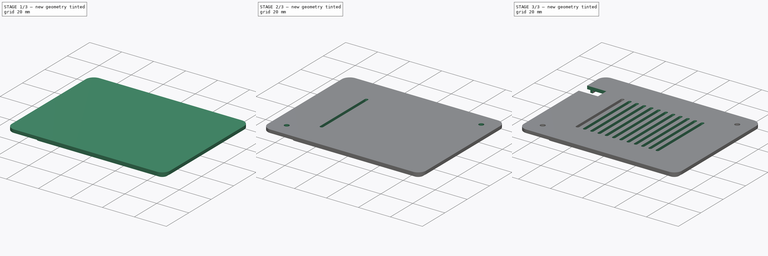
[diagram: build sequence overview — one tinted view per stage of 3, left to right]
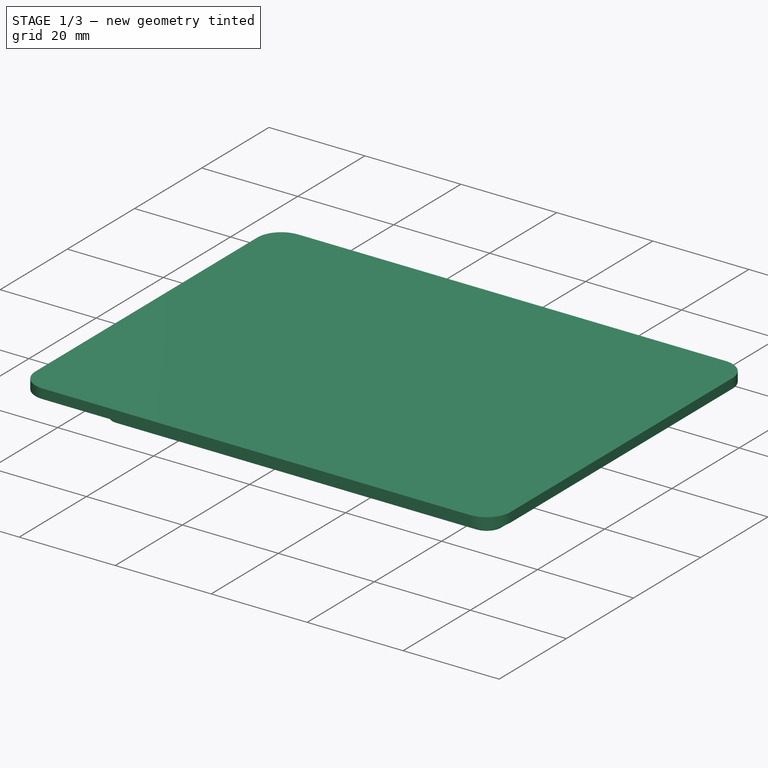
[diagram: stage 1 of 3 — iso view after this stage's code; geometry added in this stage tinted green]
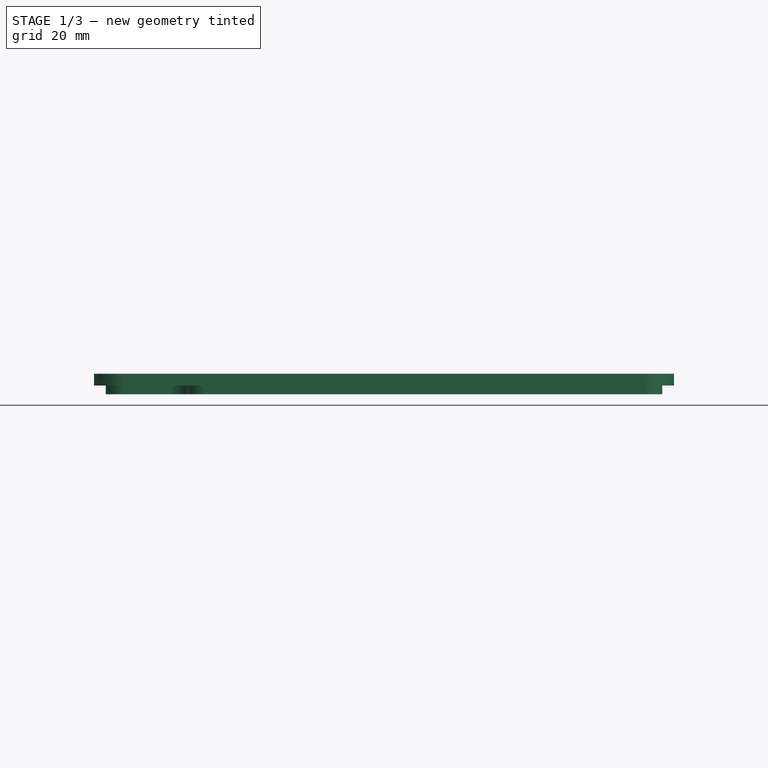
[diagram: stage 1 of 3 — front view after this stage's code; geometry added in this stage tinted green]
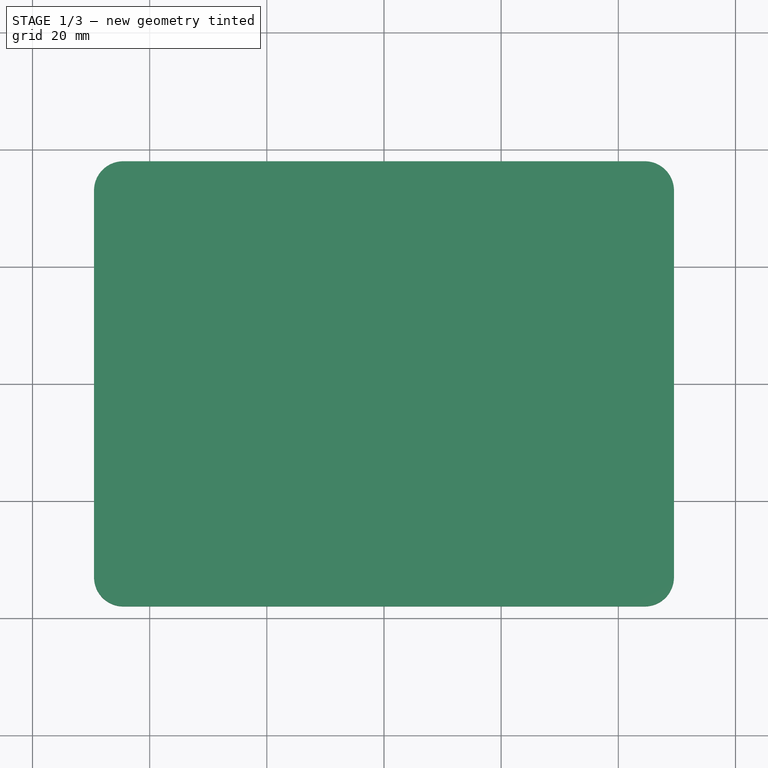
[diagram: stage 1 of 3 — top view after this stage's code; geometry added in this stage tinted green]
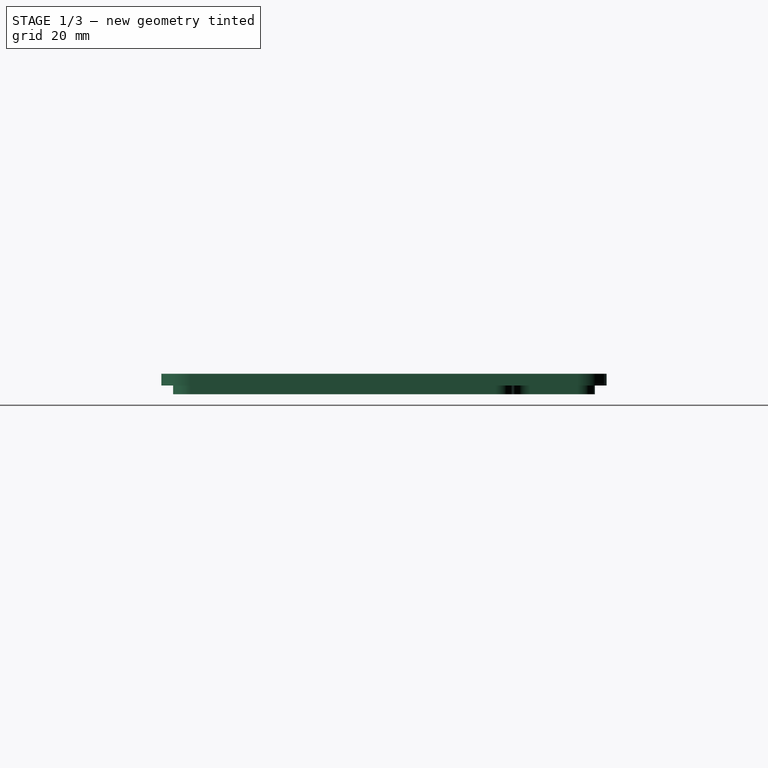
[diagram: stage 1 of 3 — right view after this stage's code; geometry added in this stage tinted green]
FCSTD DOCUMENT  (FreeCAD 0.18.4R)
Label: pi-c4g-lid
License: All rights reserved
LicenseURL: http://en.wikipedia.org/wiki/All_rights_reserved
objects: Sketcher::SketchObject×5, PartDesign::Pocket×3, PartDesign::Pad×2, PartDesign::LinearPattern×1, PartDesign::Body×1
note: 17 computed .brp shape members not serialized (recipe doc carries the construction recipe); baked Part::Feature solids carry a one-line shape summary decoded from their .brp

FEATURE [Sketcher::SketchObject] Sketch
  MapMode = 5
  Support = -> [XY_Plane]
  sketch-geometry (8):
    g0: LineSegment StartX=-44.5 StartY=38 StartZ=0 EndX=44.5 EndY=38 EndZ=0
    g1: LineSegment StartX=49.5 StartY=33 StartZ=0 EndX=49.5 EndY=-33 EndZ=0
    g2: LineSegment StartX=44.5 StartY=-38 StartZ=0 EndX=-44.5 EndY=-38 EndZ=0
    g3: LineSegment StartX=-49.5 StartY=-33 StartZ=0 EndX=-49.5 EndY=33 EndZ=0
    g4: ArcOfCircle CenterX=44.5 CenterY=-33 CenterZ=0 NormalX=0 NormalY=0 NormalZ=1 AngleXU=0 Radius=5 StartAngle=4.71239 EndAngle=6.28319
    g5: ArcOfCircle CenterX=44.5 CenterY=33 CenterZ=0 NormalX=0 NormalY=0 NormalZ=1 AngleXU=0 Radius=5 StartAngle=0 EndAngle=1.5708
    g6: ArcOfCircle CenterX=-44.5 CenterY=33 CenterZ=0 NormalX=0 NormalY=0 NormalZ=1 AngleXU=0 Radius=5 StartAngle=1.5708 EndAngle=3.14159
    g7: ArcOfCircle CenterX=-44.5 CenterY=-33 CenterZ=0 NormalX=0 NormalY=0 NormalZ=1 AngleXU=0 Radius=5 StartAngle=3.14159 EndAngle=4.71239
  constraints (19):
    c: Horizontal(g0)
    c: Horizontal(g2)
    c: Vertical(g1)
    c: Vertical(g3)
    c: Tangent(g2,g4) = 1.5708
    c: Tangent(g1,g4) = 1.5708
    c: Tangent(g0,g5) = 1.5708
    c: Tangent(g1,g5) = 1.5708
    c: Tangent(g3,g6) = 1.5708
    c: Tangent(g0,g6) = 1.5708
    c: Tangent(g3,g7) = 1.5708
    c: Tangent(g2,g7) = 1.5708
    c: Equal(g7,g6)
    c: Equal(g6,g5)
    c: Equal(g5,g4)
    c: Symmetric(g4,g6,g-1)
    c: Radius(g6) = 5
    c: DistanceY(g2,g0) = 76
    c: DistanceX(g3,g1) = 99
FEATURE [PartDesign::Pad] Pad
  Length = 2
  Length2 = 100
  Profile = -> Sketch
  Type = 0
FEATURE [Sketcher::SketchObject] Sketch001
  ExternalGeometry = -> [Pad]
  MapMode = 5
  Placement = pos=(0,0,2) rot=(0,0,1;0rad)
  Support = -> [Pad]
  sketch-geometry (32):
    g0: LineSegment StartX=-44.5 StartY=36 StartZ=0 EndX=30.5 EndY=36 EndZ=0
    g1: LineSegment StartX=33.5 StartY=33 StartZ=0 EndX=33.5 EndY=25 EndZ=0
    g2: LineSegment StartX=36.5 StartY=22 StartZ=0 EndX=44.5 EndY=22 EndZ=0
    g3: LineSegment StartX=47.5 StartY=19 StartZ=0 EndX=47.5 EndY=-33 EndZ=0
    g4: LineSegment StartX=44.5 StartY=-36 StartZ=0 EndX=-30.5 EndY=-36 EndZ=0
    g5: LineSegment StartX=-33.5 StartY=-33 StartZ=0 EndX=-33.5 EndY=-25 EndZ=0
    g6: LineSegment StartX=-36.5 StartY=-22 StartZ=0 EndX=-44.5 EndY=-22 EndZ=0
    g7: LineSegment StartX=-47.5 StartY=-19 StartZ=0 EndX=-47.5 EndY=33 EndZ=0
    g8: ArcOfCircle CenterX=-36.5 CenterY=-25 CenterZ=0 NormalX=0 NormalY=0 NormalZ=1 AngleXU=0 Radius=3 StartAngle=3e-16 EndAngle=1.5708
    g9: ArcOfCircle CenterX=36.5 CenterY=25 CenterZ=0 NormalX=0 NormalY=0 NormalZ=1 AngleXU=0 Radius=3 StartAngle=3.14159 EndAngle=4.71239
    g10: ArcOfCircle CenterX=-44.5 CenterY=33 CenterZ=0 NormalX=0 NormalY=0 NormalZ=1 AngleXU=0 Radius=3 StartAngle=1.5708 EndAngle=3.14159
    g11: ArcOfCircle CenterX=44.5 CenterY=-33 CenterZ=0 NormalX=0 NormalY=0 NormalZ=1 AngleXU=0 Radius=3 StartAngle=4.71239 EndAngle=6.28319
    g12: ArcOfCircle CenterX=-44.5 CenterY=-19 CenterZ=0 NormalX=0 NormalY=0 NormalZ=1 AngleXU=0 Radius=3 StartAngle=3.14159 EndAngle=4.71239
    g13: ArcOfCircle CenterX=-30.5 CenterY=-33 CenterZ=0 NormalX=0 NormalY=0 NormalZ=1 AngleXU=0 Radius=3 StartAngle=3.14159 EndAngle=4.71239
    g14: ArcOfCircle CenterX=44.5 CenterY=19 CenterZ=0 NormalX=0 NormalY=0 NormalZ=1 AngleXU=0 Radius=3 StartAngle=0 EndAngle=1.5708
    g15: ArcOfCircle CenterX=30.5 CenterY=33 CenterZ=0 NormalX=0 NormalY=0 NormalZ=1 AngleXU=0 Radius=3 StartAngle=-9e-16 EndAngle=1.5708
    g16: LineSegment StartX=-46 StartY=-19 StartZ=0 EndX=-46 EndY=33 EndZ=0
    g17: LineSegment StartX=-44.5 StartY=34.5 StartZ=0 EndX=30.5 EndY=34.5 EndZ=0
    g18: LineSegment StartX=32 StartY=33 StartZ=0 EndX=32 EndY=25 EndZ=0
    g19: LineSegment StartX=36.5 StartY=20.5 StartZ=0 EndX=44.5 EndY=20.5 EndZ=0
    g20: LineSegment StartX=46 StartY=19 StartZ=0 EndX=46 EndY=-33 EndZ=0
    g21: LineSegment StartX=44.5 StartY=-34.5 StartZ=0 EndX=-30.5 EndY=-34.5 EndZ=0
    g22: LineSegment StartX=-32 StartY=-33 StartZ=0 EndX=-32 EndY=-25 EndZ=0
    g23: LineSegment StartX=-36.5 StartY=-20.5 StartZ=0 EndX=-44.5 EndY=-20.5 EndZ=0
    g24: ArcOfCircle CenterX=-44.5 CenterY=33 CenterZ=0 NormalX=0 NormalY=0 NormalZ=1 AngleXU=0 Radius=1.5 StartAngle=1.5708 EndAngle=3.14159
    g25: ArcOfCircle CenterX=-36.5 CenterY=-25 CenterZ=0 NormalX=0 NormalY=0 NormalZ=1 AngleXU=0 Radius=4.5 StartAngle=0 EndAngle=1.5708
    g26: ArcOfCircle CenterX=36.5 CenterY=25 CenterZ=0 NormalX=0 NormalY=0 NormalZ=1 AngleXU=0 Radius=4.5 StartAngle=3.14159 EndAngle=4.71239
    g27: ArcOfCircle CenterX=30.5 CenterY=33 CenterZ=0 NormalX=0 NormalY=0 NormalZ=1 AngleXU=0 Radius=1.5 StartAngle=7e-16 EndAngle=1.5708
    g28: ArcOfCircle CenterX=44.5 CenterY=19 CenterZ=0 NormalX=0 NormalY=0 NormalZ=1 AngleXU=0 Radius=1.5 StartAngle=1e-15 EndAngle=1.5708
    g29: ArcOfCircle CenterX=44.5 CenterY=-33 CenterZ=0 NormalX=0 NormalY=0 NormalZ=1 AngleXU=0 Radius=1.5 StartAngle=4.71239 EndAngle=6.28319
    g30: ArcOfCircle CenterX=-44.5 CenterY=-19 CenterZ=0 NormalX=0 NormalY=0 NormalZ=1 AngleXU=0 Radius=1.5 StartAngle=3.14159 EndAngle=4.71239
    g31: ArcOfCircle CenterX=-30.5 CenterY=-33 CenterZ=0 NormalX=0 NormalY=0 NormalZ=1 AngleXU=0 Radius=1.5 StartAngle=3.14159 EndAngle=4.71239
  constraints (80):
    c: Horizontal(g0)
    c: Vertical(g3)
    c: Vertical(g5)
    c: Vertical(g7)
    c: Tangent(g6,g8) = -1.5708
    c: Tangent(g5,g8) = -1.5708
    c: Tangent(g1,g9) = -1.5708
    c: Tangent(g2,g9) = -1.5708
    c: Horizontal(g2)
    c: Vertical(g1)
    c: Horizontal(g6)
    c: Horizontal(g4)
    c: Equal(g2,g1)
    c: Equal(g1,g6)
    c: Equal(g6,g5)
    c: Equal(g8,g9)
    c: Tangent(g7,g10) = 1.5708
    c: Tangent(g0,g10) = 1.5708
    c: Tangent(g4,g11) = 1.5708
    c: Tangent(g3,g11) = 1.5708
    c: Horizontal(g-3,g3)
    c: Vertical(g0,g-4)
    c: Tangent(g7,g12) = 1.5708
    c: Tangent(g6,g12) = 1.5708
    c: Tangent(g5,g13) = 1.5708
    c: Tangent(g4,g13) = 1.5708
    c: DistanceX(g7,g5) = 14
    c: Equal(g13,g12)
    c: Radius(g13) = 3
    c: Tangent(g2,g14) = 1.5708
    c: Tangent(g3,g14) = 1.5708
    c: Tangent(g0,g15) = 1.5708
    c: Tangent(g1,g15) = 1.5708
    c: Equal(g14,g15)
    c: Equal(g15,g12)
    c: DistanceX(g3,g-3) = 2
    c: DistanceY(g0,g-4) = 2
    c: Horizontal(g7,g-5)
    c: Vertical(g-6,g4)
    c: Radius(g9) = 3
    c: Vertical(g16)
    c: Horizontal(g17)
    c: Vertical(g20)
    c: Horizontal(g21)
    c: Tangent(g16,g24) = 1.5708
    c: Tangent(g17,g24) = 1.5708
    c: Tangent(g23,g25) = -1.5708
    c: Tangent(g22,g25) = -1.5708
    c: Tangent(g18,g26) = -1.5708
    c: Tangent(g19,g26) = -1.5708
    c: Tangent(g17,g27) = 1.5708
    c: Tangent(g18,g27) = 1.5708
    c: Tangent(g19,g28) = 1.5708
    c: Tangent(g20,g28) = 1.5708
    c: Tangent(g21,g29) = 1.5708
    c: Tangent(g20,g29) = 1.5708
    c: Horizontal(g23)
    c: Vertical(g22)
    c: Vertical(g18)
    c: Horizontal(g19)
    c: Tangent(g16,g30) = 1.5708
    c: Tangent(g23,g30) = 1.5708
    c: Tangent(g22,g31) = 1.5708
    c: Tangent(g21,g31) = 1.5708
    c: DistanceY(g17,g0) = 1.5
    c: Vertical(g17,g0)
    c: Horizontal(g16,g7)
    c: Vertical(g23,g6)
    c: Vertical(g23,g6)
    c: DistanceY(g4,g21) = 1.5
    c: Horizontal(g22,g5)
    c: DistanceY(g6,g23) = 1.5
    c: DistanceX(g5,g22) = 1.5
    c: DistanceX(g18,g1) = 1.5
    c: Horizontal(g18,g1)
    c: Vertical(g19,g2)
    c: DistanceY(g19,g2) = 1.5
    c: Horizontal(g20,g3)
    c: Horizontal(g3,g20)
    c: Vertical(g19,g2)
FEATURE [PartDesign::Pad] Pad001
  BaseFeature = -> Pad
  Length = 3.5
  Length2 = 100
  Profile = -> Sketch001
  Reversed = true
  Type = 0
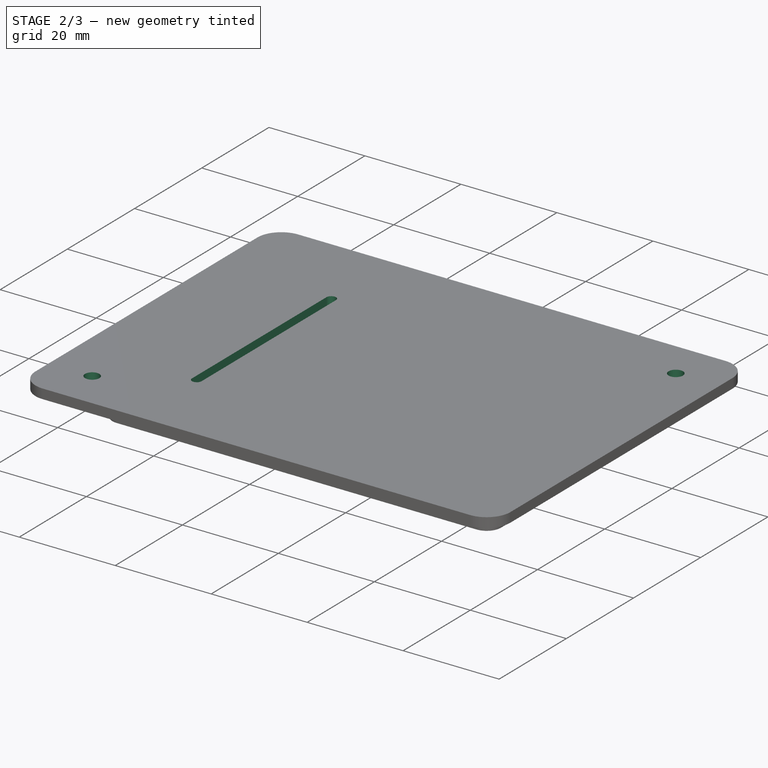
[diagram: stage 2 of 3 — iso view after this stage's code; geometry added in this stage tinted green]
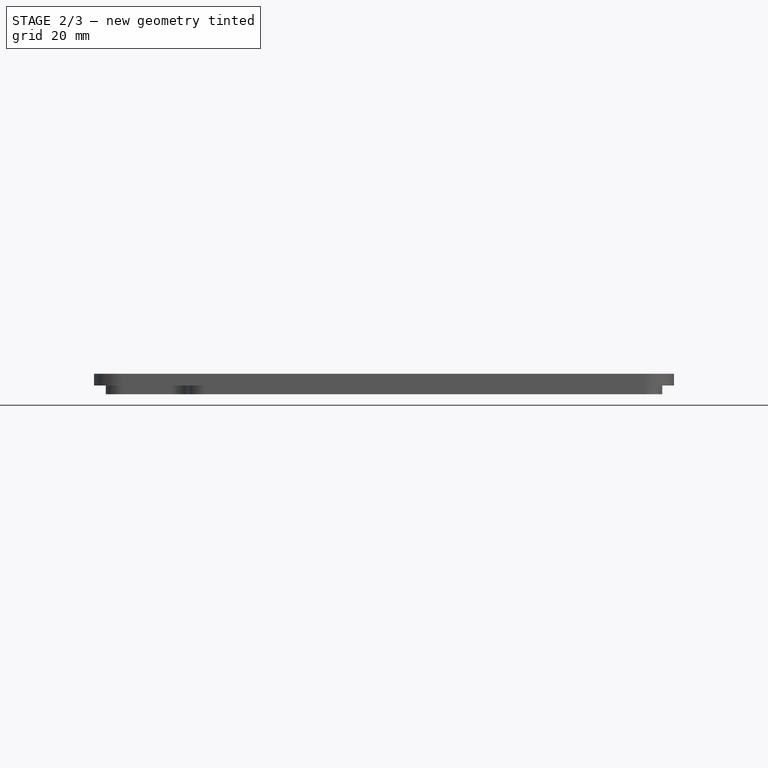
[diagram: stage 2 of 3 — front view after this stage's code; geometry added in this stage tinted green]
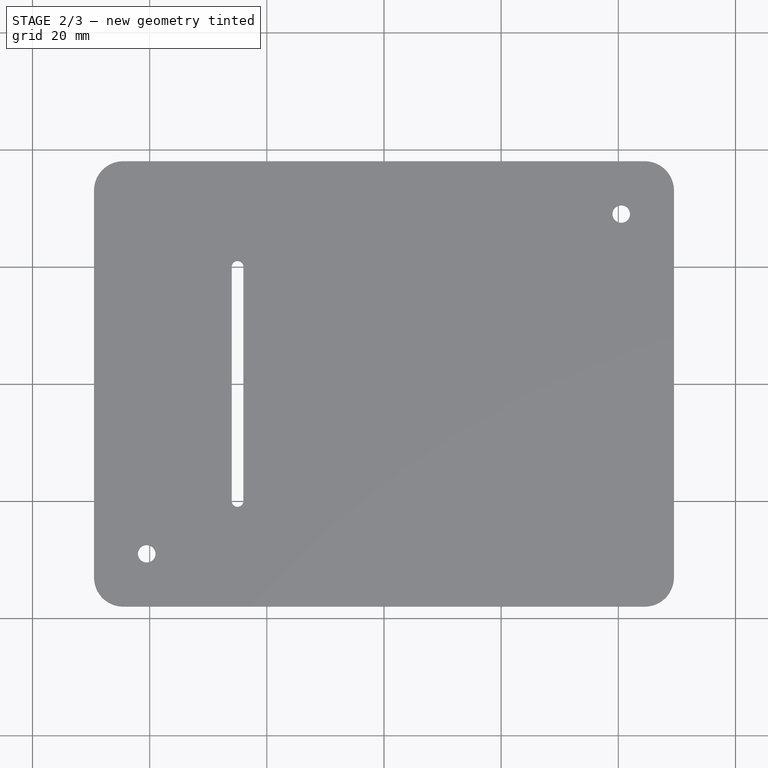
[diagram: stage 2 of 3 — top view after this stage's code; geometry added in this stage tinted green]
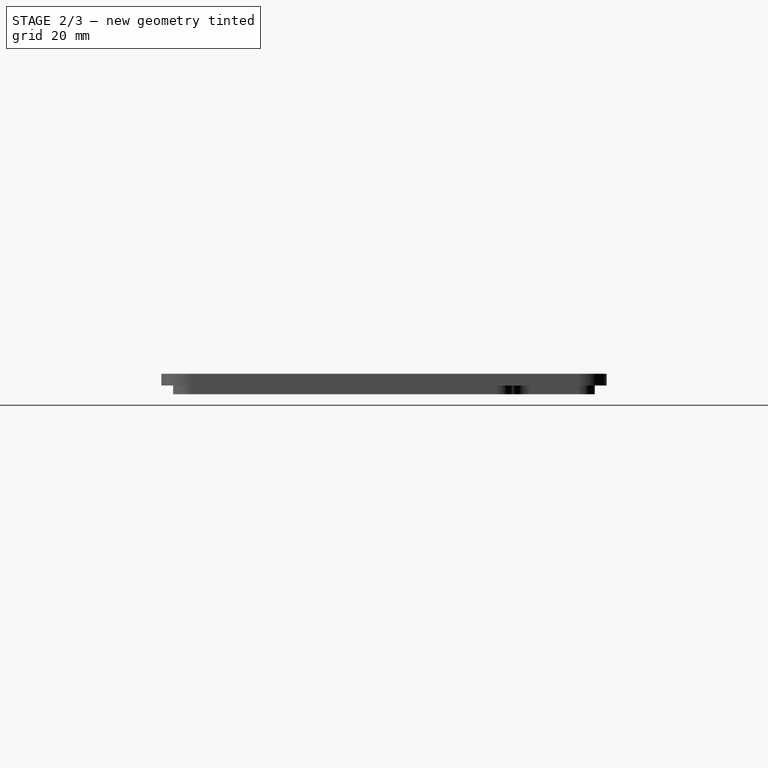
[diagram: stage 2 of 3 — right view after this stage's code; geometry added in this stage tinted green]
FEATURE [Sketcher::SketchObject] Sketch002
  ExternalGeometry = -> [Pad001]
  MapMode = 5
  Placement = pos=(0,0,2) rot=(0,0,1;0rad)
  Support = -> [Pad001]
  sketch-geometry (10):
    g0: LineSegment [constr] StartX=-44.5 StartY=36 StartZ=0 EndX=44.5 EndY=36 EndZ=0
    g1: LineSegment [constr] StartX=47.5 StartY=33 StartZ=0 EndX=47.5 EndY=-33 EndZ=0
    g2: LineSegment [constr] StartX=44.5 StartY=-36 StartZ=0 EndX=-44.5 EndY=-36 EndZ=0
    g3: LineSegment [constr] StartX=-47.5 StartY=-33 StartZ=0 EndX=-47.5 EndY=33 EndZ=0
    g4: ArcOfCircle [constr] CenterX=-44.5 CenterY=33 CenterZ=0 NormalX=0 NormalY=0 NormalZ=1 AngleXU=0 Radius=3 StartAngle=1.5708 EndAngle=3.14159
    g5: ArcOfCircle [constr] CenterX=-44.5 CenterY=-33 CenterZ=0 NormalX=0 NormalY=0 NormalZ=1 AngleXU=0 Radius=3 StartAngle=3.14159 EndAngle=4.71239
    g6: ArcOfCircle [constr] CenterX=44.5 CenterY=-33 CenterZ=0 NormalX=0 NormalY=0 NormalZ=1 AngleXU=0 Radius=3 StartAngle=4.71239 EndAngle=6.28319
    g7: ArcOfCircle [constr] CenterX=44.5 CenterY=33 CenterZ=0 NormalX=0 NormalY=0 NormalZ=1 AngleXU=0 Radius=3 StartAngle=0 EndAngle=1.5708
    g8: Circle CenterX=40.5 CenterY=29 CenterZ=0 NormalX=0 NormalY=0 NormalZ=1 AngleXU=0 Radius=1.5
    g9: Circle CenterX=-40.5 CenterY=-29 CenterZ=0 NormalX=0 NormalY=0 NormalZ=1 AngleXU=0 Radius=1.5
  constraints (23):
    c: Horizontal(g0)
    c: Horizontal(g2)
    c: Vertical(g1)
    c: Vertical(g3)
    c: Tangent(g3,g4) = 1.5708
    c: Tangent(g0,g4) = 1.5708
    c: Tangent(g3,g5) = 1.5708
    c: Tangent(g2,g5) = 1.5708
    c: Tangent(g2,g6) = 1.5708
    c: Tangent(g1,g6) = 1.5708
    c: Tangent(g0,g7) = 1.5708
    c: Tangent(g1,g7) = 1.5708
    c: Equal(g7,g4)
    c: Equal(g4,g5)
    c: Equal(g5,g6)
    c: Symmetric(g6,g4,g-1)
    c: DistanceX(g1,g-3) = 2
    c: DistanceY(g0,g-4) = 2
    c: Vertical(g0,g-4)
    c: Equal(g9,g8)
    c: Symmetric(g8,g9,g-1)
    c: Symmetric(g7,g-5,g8)
    c: Radius(g8) = 1.5
FEATURE [PartDesign::Pocket] Pocket
  BaseFeature = -> Pad001
  Length = 5
  Length2 = 100
  Profile = -> Sketch002
  Type = 0
FEATURE [Sketcher::SketchObject] Sketch003
  MapMode = 5
  Placement = pos=(0,0,2) rot=(0,0,1;0rad)
  Support = -> [Pocket]
  sketch-geometry (4):
    g0: ArcOfCircle CenterX=-25 CenterY=20 CenterZ=0 NormalX=0 NormalY=0 NormalZ=1 AngleXU=0 Radius=1 StartAngle=1.4e-15 EndAngle=3.14159
    g1: ArcOfCircle CenterX=-25 CenterY=-20 CenterZ=0 NormalX=0 NormalY=0 NormalZ=1 AngleXU=0 Radius=1 StartAngle=3.14159 EndAngle=6.28319
    g2: LineSegment StartX=-26 StartY=20 StartZ=0 EndX=-26 EndY=-20 EndZ=0
    g3: LineSegment StartX=-24 StartY=20 StartZ=0 EndX=-24 EndY=-20 EndZ=0
  constraints (9):
    c: Tangent(g0,g3) = 1.5708
    c: Tangent(g0,g2) = -1.5708
    c: Tangent(g2,g1) = -1.5708
    c: Tangent(g3,g1) = 1.5708
    c: Vertical(g2)
    c: Symmetric(g1,g0,g-1)
    c: DistanceY(g-1,g0) = 20
    c: Radius(g0) = 1
    c: DistanceX(g0,g-1) = 25
FEATURE [PartDesign::Pocket] Pocket001
  BaseFeature = -> Pocket
  Length = 5
  Length2 = 100
  Profile = -> Sketch003
  Type = 0
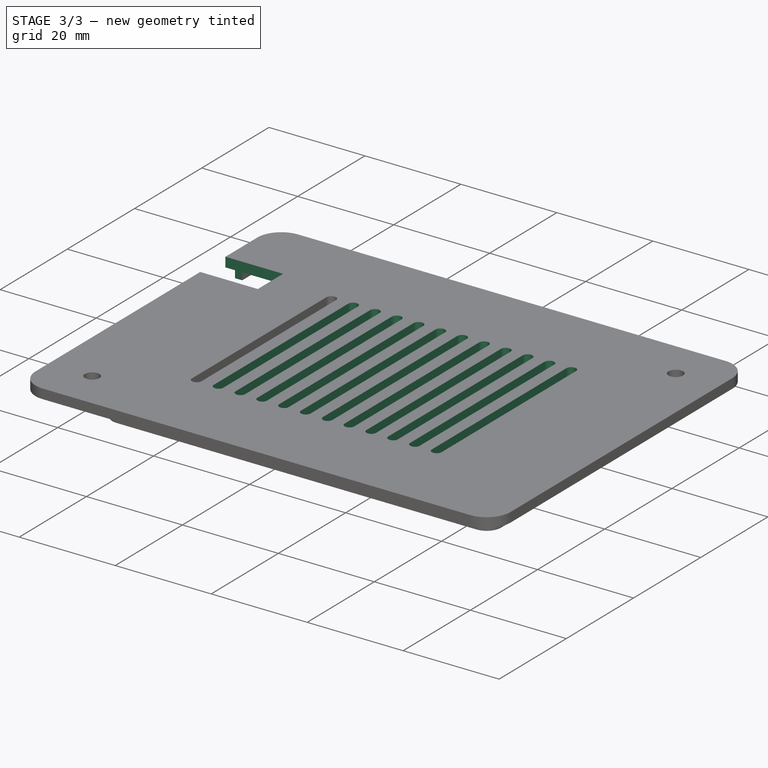
[diagram: stage 3 of 3 — iso view after this stage's code; geometry added in this stage tinted green]
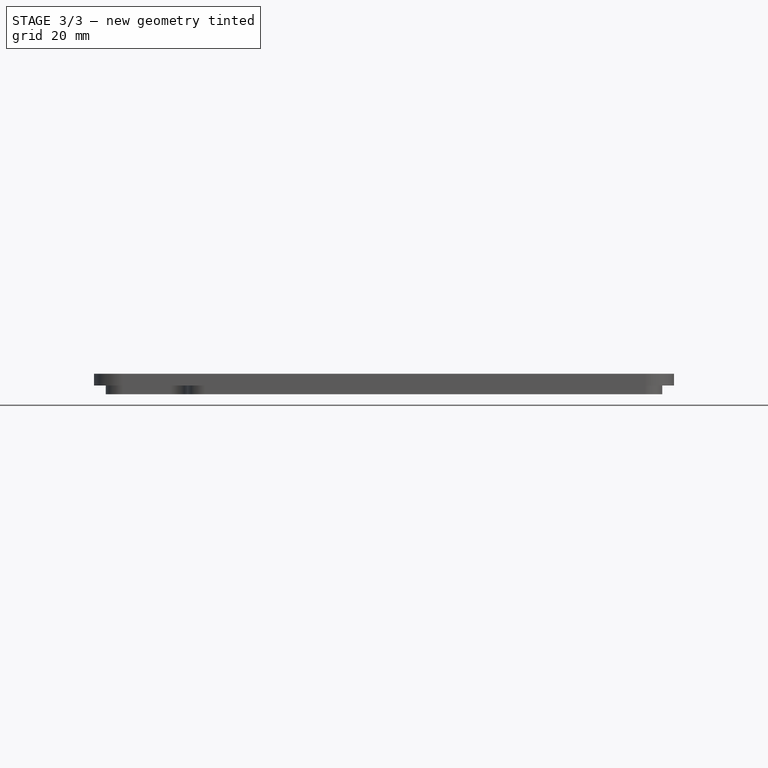
[diagram: stage 3 of 3 — front view after this stage's code; geometry added in this stage tinted green]
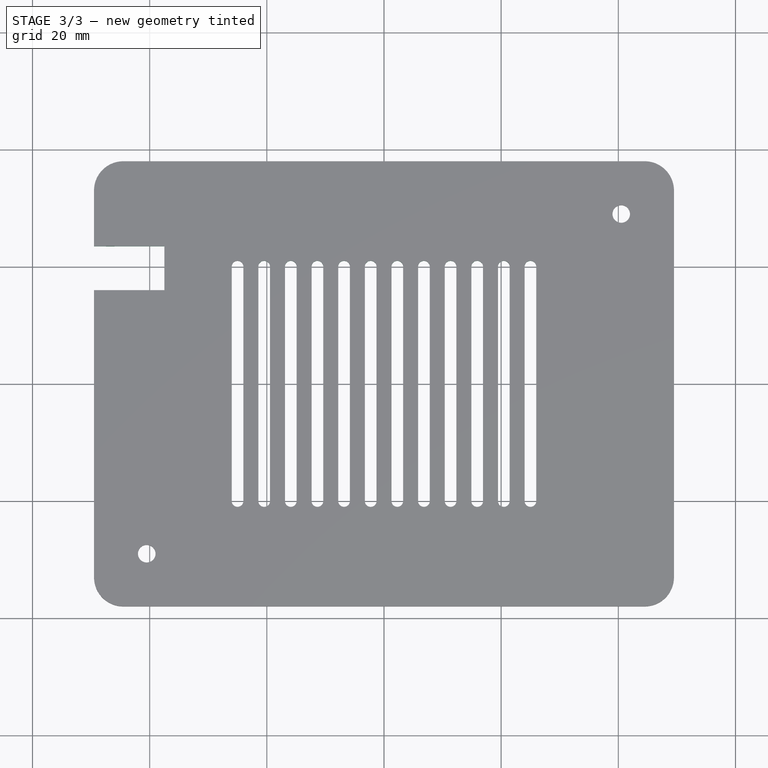
[diagram: stage 3 of 3 — top view after this stage's code; geometry added in this stage tinted green]
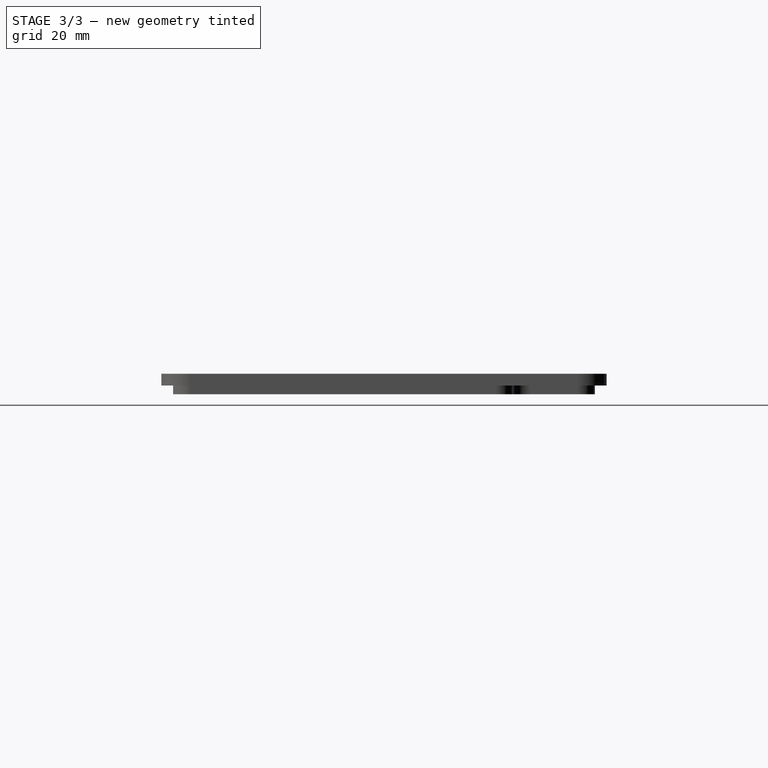
[diagram: stage 3 of 3 — right view after this stage's code; geometry added in this stage tinted green]
FEATURE [PartDesign::LinearPattern] LinearPattern
  BaseFeature = -> Pocket001
  Direction = -> Sketch003 [H_Axis]
  Length = 50
  Occurrences = 12
  Originals = -> [Pocket001]
FEATURE [Sketcher::SketchObject] Sketch004
  ExternalGeometry = -> [LinearPattern]
  MapMode = 5
  Placement = pos=(0,0,0) rot=(1,0,0;3.14159rad)
  Support = -> [LinearPattern]
  sketch-geometry (4):
    g0: LineSegment StartX=-49.5 StartY=-16 StartZ=0 EndX=-37.5 EndY=-16 EndZ=0
    g1: LineSegment StartX=-37.5 StartY=-16 StartZ=0 EndX=-37.5 EndY=-23.5 EndZ=0
    g2: LineSegment StartX=-37.5 StartY=-23.5 StartZ=0 EndX=-49.5 EndY=-23.5 EndZ=0
    g3: LineSegment StartX=-49.5 StartY=-23.5 StartZ=0 EndX=-49.5 EndY=-16 EndZ=0
  constraints (12):
    c: Coincident(g0,g1)
    c: Coincident(g1,g2)
    c: Coincident(g2,g3)
    c: Coincident(g3,g0)
    c: Horizontal(g0)
    c: Horizontal(g2)
    c: Vertical(g1)
    c: Vertical(g3)
    c: DistanceY(g1,g1) = 7.5
    c: DistanceY(g-1,g1) = -23.5
    c: DistanceX(g0,g0) = 12
    c: PointOnObject(g2,g-3)
FEATURE [PartDesign::Pocket] Pocket002
  BaseFeature = -> LinearPattern
  Length = 10
  Length2 = 100
  Profile = -> Sketch004
  Type = 4
FEATURE [PartDesign::Body] Body
  Group = -> [Sketch,Pad,Sketch001,Pad001,Sketch002,Pocket,Sketch003,Pocket001,LinearPattern,Sketch004,Pocket002]
  Origin = -> Origin
  Tip = -> Pocket002
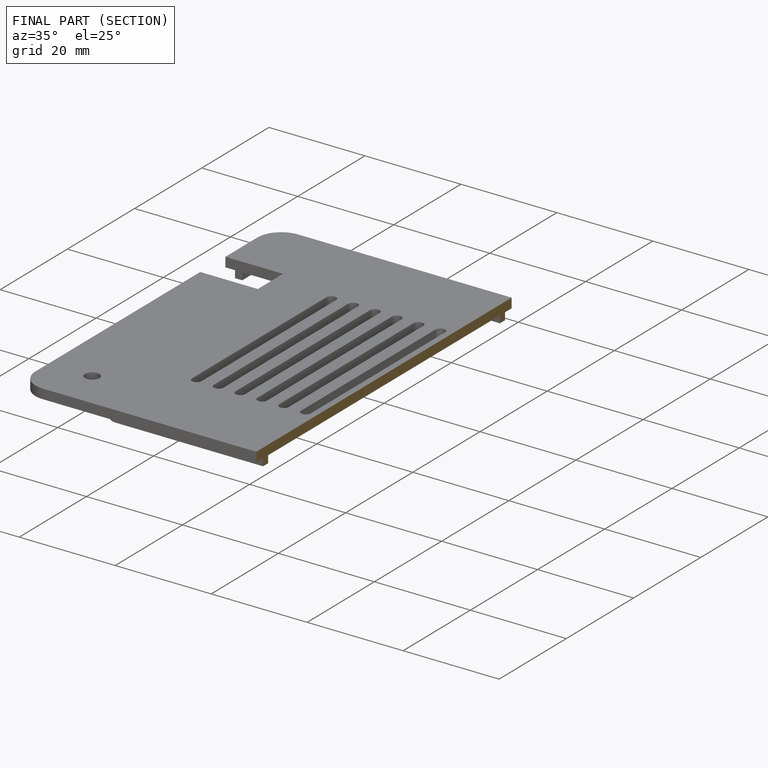
[diagram: finished part — half-section view (interior)]
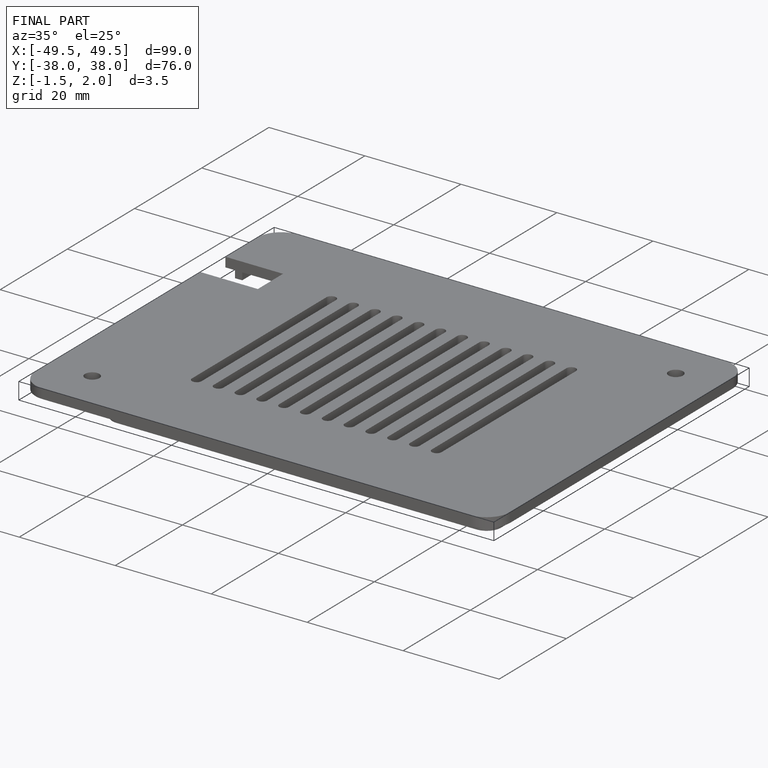
[diagram: finished part — iso view with bounding-box wireframe]
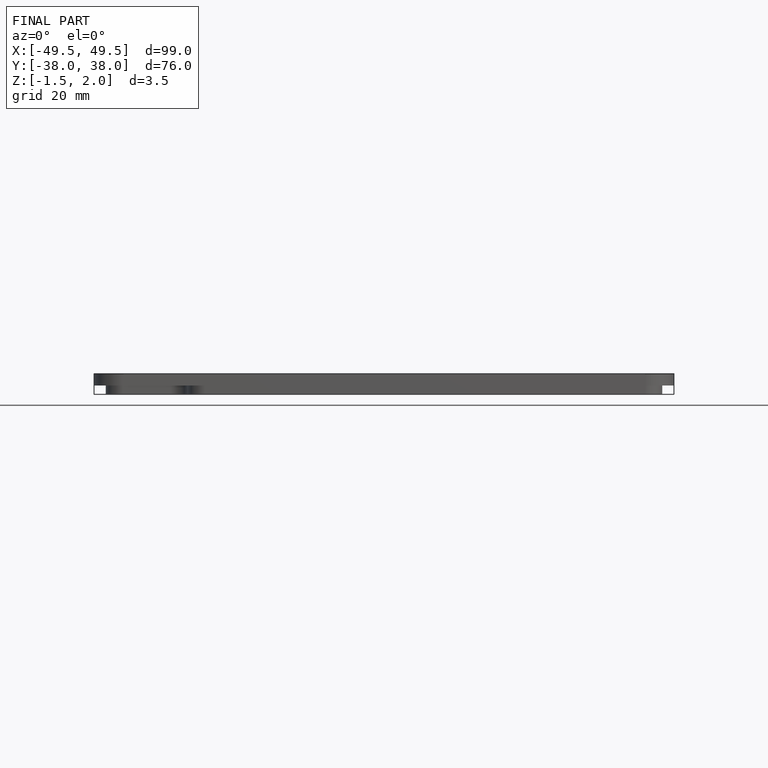
[diagram: finished part — front view with bounding-box wireframe]
